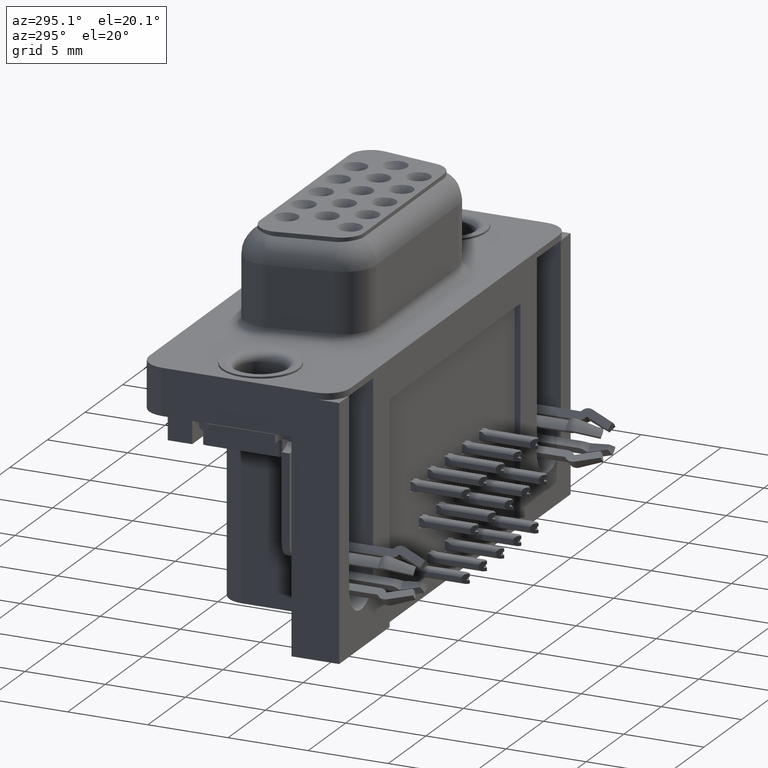
[diagram: clean part render]
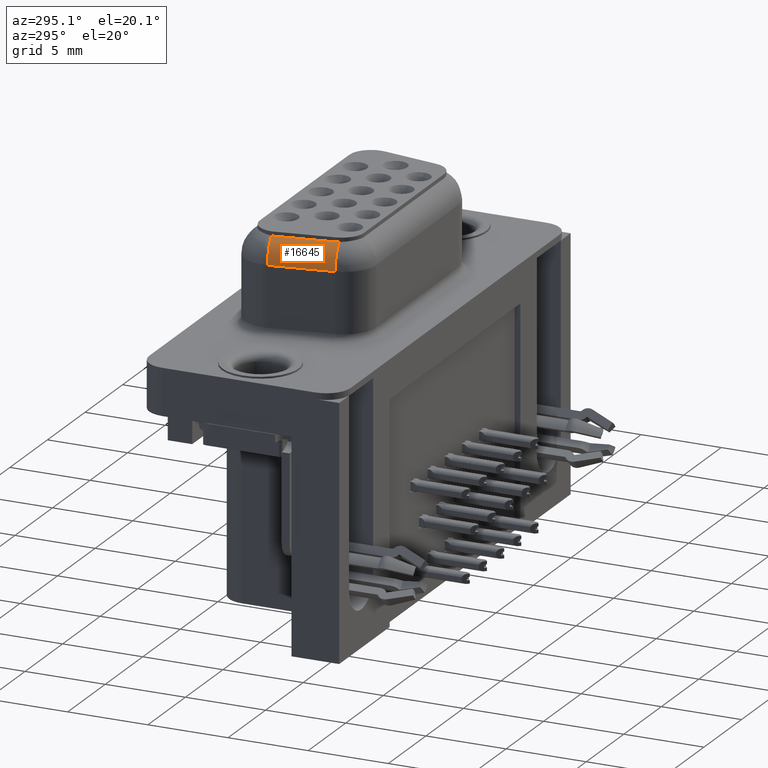
[diagram: same view with one face highlighted and labeled with its STEP entity id]
A machine part, auxiliary view. The second image highlights one B-rep face of the part: STEP entity #16645.
In plain terms, the highlighted cylindrical surface (edge-blend (fillet) strip) has radius 1.75 mm, axis along (0.1736, -0.9848, 0).
Its self-contained STEP definition (entity closure, byte-faithful):
#590 = EDGE_CURVE ( 'NONE', #23060, #23134, #17343, .T. ) ;
#1573 = LINE ( 'NONE', #24161, #26044 ) ;
#2045 = CARTESIAN_POINT ( 'NONE',  ( 5.200509533433506500, 1.515574960149654900, 6.127528686315415000 ) ) ;
#2374 = CARTESIAN_POINT ( 'NONE',  ( 5.200509533433506500, 1.515574960149654900, 6.127528686315415000 ) ) ;
#3345 = ORIENTED_EDGE ( 'NONE', *, *, #11799, .F. ) ;
#4474 = DIRECTION ( 'NONE',  ( 0.9848077530122091300, 0.1736481776669237500, 0.0000000000000000000 ) ) ;
#4492 = ORIENTED_EDGE ( 'NONE', *, *, #29095, .T. ) ;
#4614 = B_SPLINE_CURVE_WITH_KNOTS ( 'NONE', 3,
 ( #13490, #25737, #28226, #13599 ),
 .UNSPECIFIED., .F., .F.,
 ( 4, 4 ),
 ( 0.0000000000000000000, 0.0001749916055301496100 ),
 .UNSPECIFIED. ) ;
#5032 = ORIENTED_EDGE ( 'NONE', *, *, #24274, .T. ) ;
#5165 = CYLINDRICAL_SURFACE ( 'NONE', #20703, 1.750000000000000400 ) ;
#7447 = DIRECTION ( 'NONE',  ( -0.1736481776669238100, 0.9848077530122092400, -0.0000000000000000000 ) ) ;
#8160 = CARTESIAN_POINT ( 'NONE',  ( 5.180002853165039900, 1.747224475275255700, 6.140052852112478200 ) ) ;
#8678 = CARTESIAN_POINT ( 'NONE',  ( 5.859102686853954200, -2.154287597541232600, 6.134654486838705600 ) ) ;
#9131 = EDGE_CURVE ( 'NONE', #25912, #22914, #10552, .T. ) ;
#9280 = DIRECTION ( 'NONE',  ( -0.1736481776669237500, 0.9848077530122092400, 0.0000000000000000000 ) ) ;
#10046 = VECTOR ( 'NONE', #7447, 1000.000000000000100 ) ;
#10552 = CIRCLE ( 'NONE', #13412, 1.750000000000000400 ) ;
#10627 = DIRECTION ( 'NONE',  ( -0.1736481776669238600, 0.9848077530122092400, 0.0000000000000000000 ) ) ;
#11799 = EDGE_CURVE ( 'NONE', #29236, #25912, #1573, .T. ) ;
#12016 = DIRECTION ( 'NONE',  ( -0.1736481776669238100, 0.9848077530122092400, -0.0000000000000000000 ) ) ;
#12723 = B_SPLINE_CURVE_WITH_KNOTS ( 'NONE', 3,
 ( #2045, #16716, #31294, #19167 ),
 .UNSPECIFIED., .F., .F.,
 ( 4, 4 ),
 ( 2.168404344971008600E-019, 0.0002328924140509330600 ),
 .UNSPECIFIED. ) ;
#13412 = AXIS2_PLACEMENT_3D ( 'NONE', #25242, #10627, #27735 ) ;
#13490 = CARTESIAN_POINT ( 'NONE',  ( 5.859102686853954200, -2.154287597541232600, 6.134654486838705600 ) ) ;
#13599 = CARTESIAN_POINT ( 'NONE',  ( 5.817653965913108600, -1.984425039850346200, 6.127528686315415900 ) ) ;
#14116 = EDGE_LOOP ( 'NONE', ( #25746, #27624, #14781, #3345, #4492, #5032 ) ) ;
#14479 = EDGE_CURVE ( 'NONE', #23134, #22914, #12723, .T. ) ;
#14781 = ORIENTED_EDGE ( 'NONE', *, *, #9131, .F. ) ;
#16645 = ADVANCED_FACE ( 'NONE', ( #18176 ), #5165, .T. ) ;
#16716 = CARTESIAN_POINT ( 'NONE',  ( 5.186959194835664800, 1.592422749089264400, 6.127528686315416800 ) ) ;
#17343 = LINE ( 'NONE', #22081, #10046 ) ;
#17553 = CARTESIAN_POINT ( 'NONE',  ( 4.360384493975566900, 1.602703644666155300, 4.650000000000000400 ) ) ;
#18079 = VERTEX_POINT ( 'NONE', #8678 ) ;
#18176 = FACE_OUTER_BOUND ( 'NONE', #14116, .T. ) ;
#19167 = CARTESIAN_POINT ( 'NONE',  ( 5.180002853165039900, 1.747224475275255700, 6.140052852112478200 ) ) ;
#20703 = AXIS2_PLACEMENT_3D ( 'NONE', #21474, #31261, #4474 ) ;
#21474 = CARTESIAN_POINT ( 'NONE',  ( 7.101796388808853800, -3.866767449084462300, 4.650000000000000400 ) ) ;
#21617 = CIRCLE ( 'NONE', #22524, 1.750000000000000400 ) ;
#21620 = CARTESIAN_POINT ( 'NONE',  ( 5.817653965913108600, -1.984425039850346200, 6.127528686315415900 ) ) ;
#22081 = CARTESIAN_POINT ( 'NONE',  ( 6.178275108241449800, -4.029609168106921900, 6.127528686315415000 ) ) ;
#22524 = AXIS2_PLACEMENT_3D ( 'NONE', #23902, #9280, #26357 ) ;
#22914 = VERTEX_POINT ( 'NONE', #8160 ) ;
#23060 = VERTEX_POINT ( 'NONE', #21620 ) ;
#23134 = VERTEX_POINT ( 'NONE', #2374 ) ;
#23902 = CARTESIAN_POINT ( 'NONE',  ( 6.771473286509920100, -1.993412044416731100, 4.650000000000000400 ) ) ;
#24161 = CARTESIAN_POINT ( 'NONE',  ( 5.048059718738554300, -2.297296355333847900, 4.650000000000000400 ) ) ;
#24274 = EDGE_CURVE ( 'NONE', #18079, #23060, #4614, .T. ) ;
#24528 = CARTESIAN_POINT ( 'NONE',  ( 5.048059718738554300, -2.297296355333847900, 4.650000000000000400 ) ) ;
#25242 = CARTESIAN_POINT ( 'NONE',  ( 6.083798061746933600, 1.906587955583272100, 4.650000000000000400 ) ) ;
#25737 = CARTESIAN_POINT ( 'NONE',  ( 5.841640549381449600, -2.098654028346356600, 6.129951803701017900 ) ) ;
#25746 = ORIENTED_EDGE ( 'NONE', *, *, #590, .T. ) ;
#25912 = VERTEX_POINT ( 'NONE', #17553 ) ;
#26044 = VECTOR ( 'NONE', #12016, 1000.000000000000100 ) ;
#26357 = DIRECTION ( 'NONE',  ( -0.9848077530122091300, -0.1736481776669237500, 0.0000000000000000000 ) ) ;
#27624 = ORIENTED_EDGE ( 'NONE', *, *, #14479, .T. ) ;
#27735 = DIRECTION ( 'NONE',  ( -0.9848077530122091300, -0.1736481776669238900, 0.0000000000000000000 ) ) ;
#28226 = CARTESIAN_POINT ( 'NONE',  ( 5.827812688523117400, -2.042038018699033200, 6.127528686315415000 ) ) ;
#29095 = EDGE_CURVE ( 'NONE', #29236, #18079, #21617, .T. ) ;
#29236 = VERTEX_POINT ( 'NONE', #24528 ) ;
#31261 = DIRECTION ( 'NONE',  ( 0.1736481776669238400, -0.9848077530122093500, 0.0000000000000000000 ) ) ;
#31294 = CARTESIAN_POINT ( 'NONE',  ( 5.180162373774734900, 1.669634689808890100, 6.131851260962046800 ) ) ;